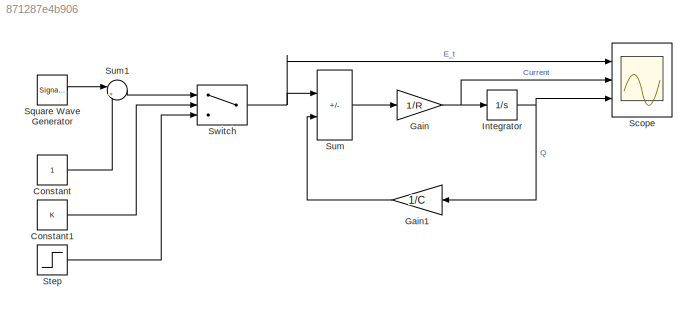
MODEL slx_871287e4b906
KIND model
CONFIG AbsTol = auto
CONFIG EnableMultiTasking = off
CONFIG FixedStep = auto
CONFIG MaxStep = auto
CONFIG MinStep = auto
CONFIG RelTol = 1e-3
CONFIG SampleTimeConstraint = Unconstrained
CONFIG SolverName = VariableStepAuto
CONFIG StartTime = 0.0
CONFIG StopTime = 10.0
WORKSPACE source: mxarray member
WORKSPACE C = 1e-06
WORKSPACE R = 10
BLOCK [Constant] Constant
BLOCK [Constant] Constant1
  Value = K
BLOCK [Gain] Gain
  Gain = 1/R
BLOCK [Gain] Gain1
  Gain = 1/C
BLOCK [Integrator] Integrator
  InitialCondition = i1
  Ports = [1, 1]
BLOCK [Scope] Scope
  Floating = off
  NumInputPorts = 3
  Ports = [3]
  ScopeSpecificationString = Simulink.scopes.TimeScopeBlockCfg('CurrentConfiguration', extmgr.ConfigurationSet(extmgr.Configuration('Core','General UI',true),extmgr.Configuration('Core','Source UI',true),extmgr.Configuration('Sources','WiredSimulink',true),extmgr.Configuration('Visuals','Time Domain',true,'SerializedDisplays',{struct('MinYLimReal','-0.25','MaxYLimReal','2.25','YLabelReal','','MinYLimMag','0.00000','MaxYLimMag...<+2684ch>
BLOCK [SignalGenerator] Square Wave Generator
  Frequency = 4
  Ports = [0, 1]
  Units = rad/sec
  WaveForm = square
BLOCK [Step] Step
  SampleTime = 0
BLOCK [Sum] Sum
  IconShape = rectangular
  Inputs = |+-
  Ports = [2, 1]
BLOCK [Sum] Sum1
  Inputs = |++
  Ports = [2, 1]
BLOCK [Switch] Switch
  Criteria = u2 > Threshold
  InputSameDT = off
  SaturateOnIntegerOverflow = off
LINE Constant1:1 -> Switch:2
LINE Constant:1 -> Sum1:2
LINE Gain1:1 -> Sum:2
NET Gain:1 -> Integrator:1, Scope:2
NET Integrator:1 -> Gain1:1, Scope:3
LINE Square Wave Generator:1 -> Sum1:1
LINE Step:1 -> Switch:3
LINE Sum1:1 -> Switch:1
LINE Sum:1 -> Gain:1
NET Switch:1 -> Scope:1, Sum:1
note: NET lines group one-source signal fan-out (src -> all destinations, sorted); 1:1 wires keep LINE
